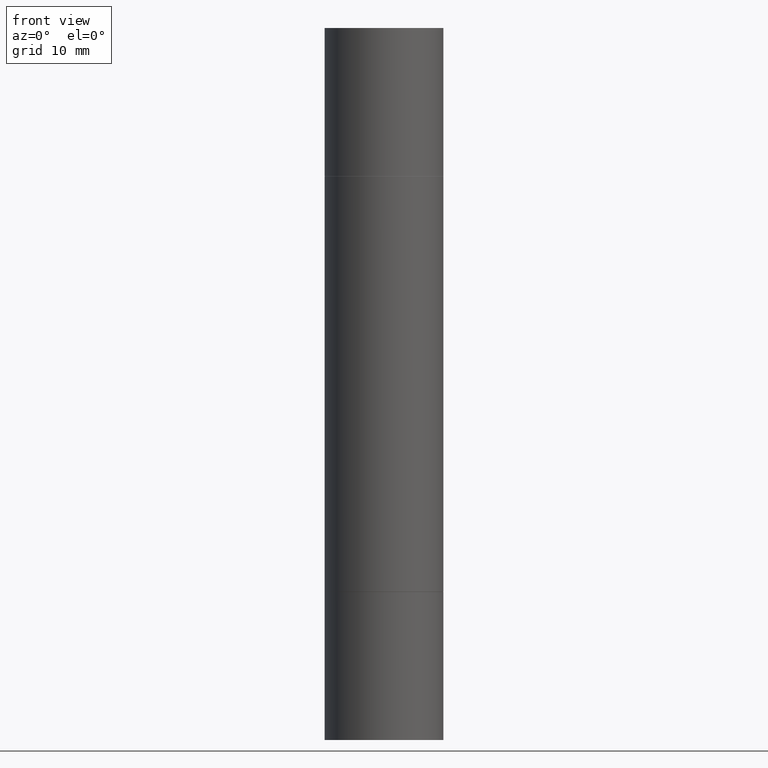
[diagram: clean part render]
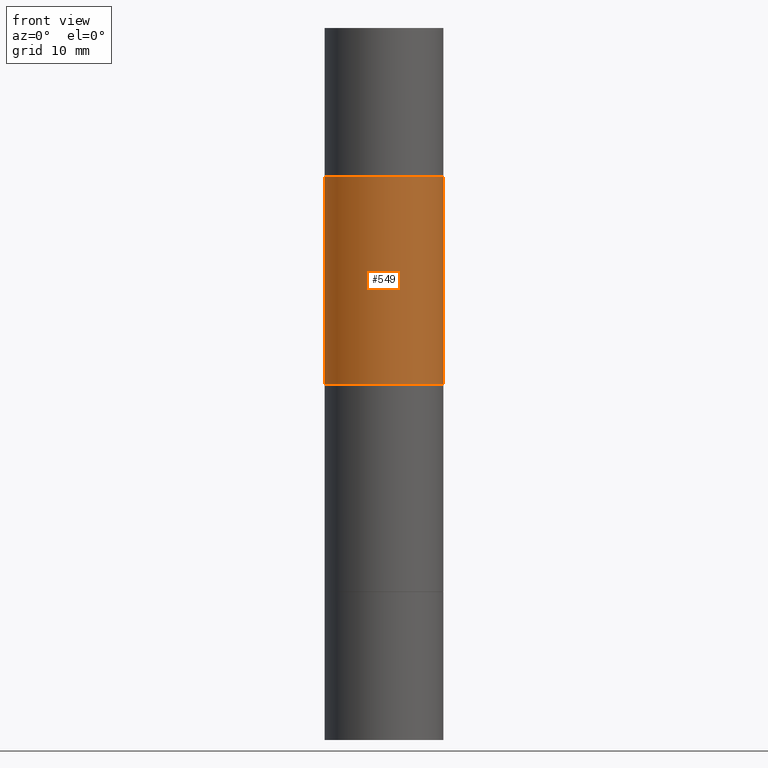
[diagram: same view with one face highlighted and labeled with its STEP entity id]
A machine part, front view. The second image highlights one B-rep face of the part: STEP entity #549.
In plain terms, the highlighted cylindrical surface (partial cylindrical patch) has radius 6.35 mm, axis along (-0, -0, -1).
Its self-contained STEP definition (entity closure, byte-faithful):
#10 = VERTEX_POINT ( 'NONE', #579 ) ;
#29 = EDGE_CURVE ( 'NONE', #651, #342, #630, .T. ) ;
#36 = EDGE_CURVE ( 'NONE', #10, #342, #527, .T. ) ;
#218 = DIRECTION ( 'NONE',  ( -0.000000000000000000, -3.492185875197449130E-15, -1.000000000000000000 ) ) ;
#227 = CIRCLE ( 'NONE', #600, 0.2500000000000000000 ) ;
#252 = DIRECTION ( 'NONE',  ( 2.445468806185136597E-29, 3.492890411551752677E-15, 1.000000000000000000 ) ) ;
#254 = EDGE_LOOP ( 'NONE', ( #416, #405, #261, #621 ) ) ;
#261 = ORIENTED_EDGE ( 'NONE', *, *, #36, .F. ) ;
#269 = EDGE_CURVE ( 'NONE', #463, #10, #498, .T. ) ;
#298 = CARTESIAN_POINT ( 'NONE',  ( 0.2500000000000000000, -3.930176457990049608E-15, -0.6259999999999990017 ) ) ;
#342 = VERTEX_POINT ( 'NONE', #462 ) ;
#343 = EDGE_CURVE ( 'NONE', #651, #463, #227, .T. ) ;
#357 = DIRECTION ( 'NONE',  ( -2.445468806185136877E-29, -3.492890411551753071E-15, -1.000000000000000000 ) ) ;
#384 = CARTESIAN_POINT ( 'NONE',  ( -0.2500000000000000000, -4.693112891255996450E-16, -0.6259999999999990017 ) ) ;
#402 = CARTESIAN_POINT ( 'NONE',  ( -0.2499999999999998335, -8.761433126149462132E-15, -2.999999999999999112 ) ) ;
#405 = ORIENTED_EDGE ( 'NONE', *, *, #29, .T. ) ;
#416 = ORIENTED_EDGE ( 'NONE', *, *, #343, .F. ) ;
#432 = CYLINDRICAL_SURFACE ( 'NONE', #657, 0.2499999999999998335 ) ;
#462 = CARTESIAN_POINT ( 'NONE',  ( -0.2499999999999998335, -1.995704398973716874E-15, -1.499999999999999556 ) ) ;
#463 = VERTEX_POINT ( 'NONE', #298 ) ;
#484 = VECTOR ( 'NONE', #493, 39.37007874015748143 ) ;
#485 = DIRECTION ( 'NONE',  ( -2.445468806185136597E-29, -3.492890411551752677E-15, -1.000000000000000000 ) ) ;
#488 = FACE_OUTER_BOUND ( 'NONE', #254, .T. ) ;
#493 = DIRECTION ( 'NONE',  ( -2.445468806185136877E-29, -3.492890411551753071E-15, -1.000000000000000000 ) ) ;
#495 = AXIS2_PLACEMENT_3D ( 'NONE', #528, #218, #625 ) ;
#498 = LINE ( 'NONE', #661, #484 ) ;
#527 = CIRCLE ( 'NONE', #495, 0.2499999999999998335 ) ;
#528 = CARTESIAN_POINT ( 'NONE',  ( 3.668203209277703774E-29, -5.237222008264716599E-15, -1.499999999999999556 ) ) ;
#549 = ADVANCED_FACE ( 'NONE', ( #488 ), #432, .T. ) ;
#564 = CARTESIAN_POINT ( 'NONE',  ( 5.805542945883514935E-29, -2.184435788568482141E-15, -0.6259999999999990017 ) ) ;
#579 = CARTESIAN_POINT ( 'NONE',  ( 0.2499999999999998335, -5.456569567838164864E-15, -1.499999999999999556 ) ) ;
#592 = CARTESIAN_POINT ( 'NONE',  ( 0.000000000000000000, -1.047655762559234344E-14, -2.999999999999999112 ) ) ;
#600 = AXIS2_PLACEMENT_3D ( 'NONE', #564, #252, #628 ) ;
#621 = ORIENTED_EDGE ( 'NONE', *, *, #269, .F. ) ;
#625 = DIRECTION ( 'NONE',  ( 0.000000000000000000, 1.000000000000000000, -3.278217592397118229E-15 ) ) ;
#628 = DIRECTION ( 'NONE',  ( 1.000000000000000000, -6.982962677686266711E-15, 0.000000000000000000 ) ) ;
#630 = LINE ( 'NONE', #402, #654 ) ;
#647 = DIRECTION ( 'NONE',  ( 1.000000000000000000, -6.982962677686267499E-15, 0.000000000000000000 ) ) ;
#651 = VERTEX_POINT ( 'NONE', #384 ) ;
#654 = VECTOR ( 'NONE', #357, 39.37007874015748143 ) ;
#657 = AXIS2_PLACEMENT_3D ( 'NONE', #592, #485, #647 ) ;
#661 = CARTESIAN_POINT ( 'NONE',  ( 0.2499999999999998335, -1.222229829501391012E-14, -2.999999999999999112 ) ) ;